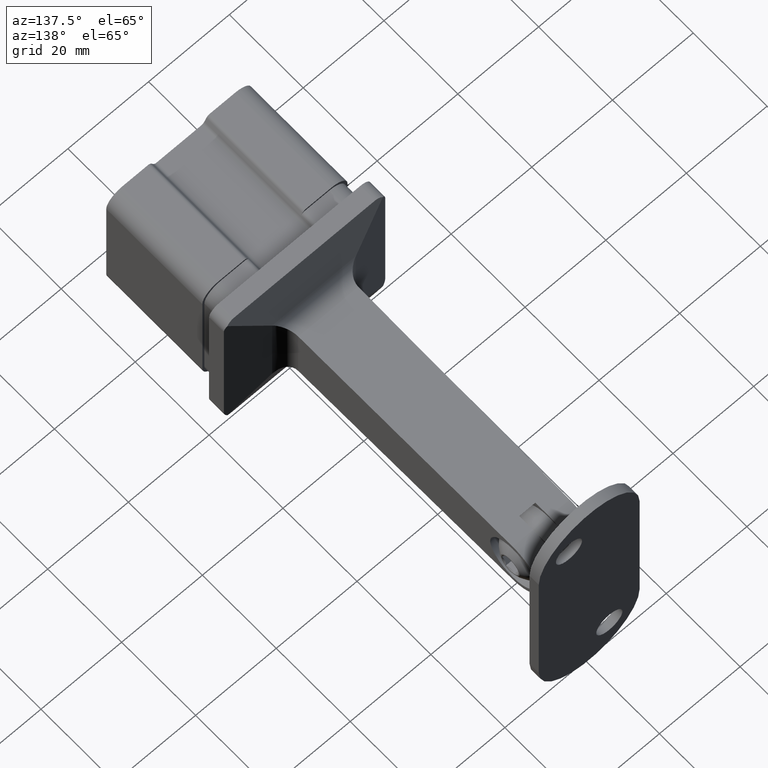
[diagram: clean part render]
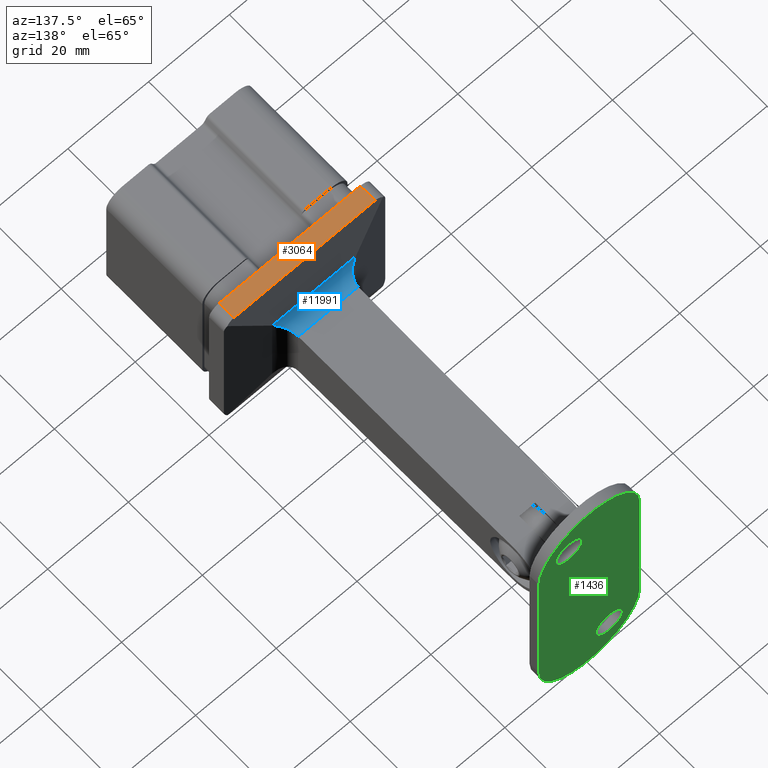
[diagram: same view with three faces highlighted in distinct colors, each labeled with its STEP entity id]
A machine part, auxiliary view with three faces highlighted in distinct colors.
Their STEP definitions:

[orange] entity #3064 — the highlighted planar face has unit normal (0, 0, -1).
#27 = PLANE ( 'NONE',  #9088 ) ;
#290 = EDGE_CURVE ( 'NONE', #8946, #13395, #12079, .T. ) ;
#694 = EDGE_CURVE ( 'NONE', #4160, #13395, #10576, .T. ) ;
#701 = VECTOR ( 'NONE', #10842, 1000.000000000000000 ) ;
#1072 = VECTOR ( 'NONE', #3628, 1000.000000000000000 ) ;
#1200 = EDGE_CURVE ( 'NONE', #4160, #14607, #8900, .T. ) ;
#1765 = CARTESIAN_POINT ( 'NONE',  ( -17.49999999999999645, 4.000000000000000000, 19.99999999999999645 ) ) ;
#2412 = VECTOR ( 'NONE', #3175, 1000.000000000000000 ) ;
#3018 = CARTESIAN_POINT ( 'NONE',  ( 17.50000000000000000, 4.000000000000000000, 19.99999999999999645 ) ) ;
#3064 = ADVANCED_FACE ( 'NONE', ( #14556 ), #27, .F. ) ;
#3175 = DIRECTION ( 'NONE',  ( -0.000000000000000000, 1.000000000000000000, -0.000000000000000000 ) ) ;
#3628 = DIRECTION ( 'NONE',  ( 1.000000000000000000, 0.000000000000000000, 0.000000000000000000 ) ) ;
#4160 = VERTEX_POINT ( 'NONE', #12937 ) ;
#5874 = CARTESIAN_POINT ( 'NONE',  ( -19.99999999999999645, 0.000000000000000000, 19.99999999999999645 ) ) ;
#6106 = CARTESIAN_POINT ( 'NONE',  ( -20.00000000000000355, 4.000000000000000000, 19.99999999999999645 ) ) ;
#6232 = ORIENTED_EDGE ( 'NONE', *, *, #290, .T. ) ;
#6411 = LINE ( 'NONE', #5874, #1072 ) ;
#6470 = ORIENTED_EDGE ( 'NONE', *, *, #694, .F. ) ;
#8327 = CARTESIAN_POINT ( 'NONE',  ( 17.50000000000000711, 0.000000000000000000, 19.99999999999999645 ) ) ;
#8425 = DIRECTION ( 'NONE',  ( -1.000000000000000000, 0.000000000000000000, -0.000000000000000000 ) ) ;
#8532 = CARTESIAN_POINT ( 'NONE',  ( -19.99999999999999645, 4.000000000000000000, 19.99999999999999645 ) ) ;
#8900 = LINE ( 'NONE', #1765, #10206 ) ;
#8946 = VERTEX_POINT ( 'NONE', #8327 ) ;
#9088 = AXIS2_PLACEMENT_3D ( 'NONE', #8532, #13466, #8425 ) ;
#9537 = CARTESIAN_POINT ( 'NONE',  ( 17.50000000000000711, 4.000000000000000000, 19.99999999999999645 ) ) ;
#10206 = VECTOR ( 'NONE', #11295, 1000.000000000000000 ) ;
#10576 = LINE ( 'NONE', #6106, #701 ) ;
#10842 = DIRECTION ( 'NONE',  ( 1.000000000000000000, -0.000000000000000000, -0.000000000000000000 ) ) ;
#10892 = ORIENTED_EDGE ( 'NONE', *, *, #1200, .T. ) ;
#11295 = DIRECTION ( 'NONE',  ( 0.000000000000000000, -1.000000000000000000, 0.000000000000000000 ) ) ;
#11798 = EDGE_LOOP ( 'NONE', ( #6470, #10892, #15709, #6232 ) ) ;
#11925 = EDGE_CURVE ( 'NONE', #14607, #8946, #6411, .T. ) ;
#12079 = LINE ( 'NONE', #9537, #2412 ) ;
#12937 = CARTESIAN_POINT ( 'NONE',  ( -17.49999999999999645, 4.000000000000000000, 19.99999999999999645 ) ) ;
#13395 = VERTEX_POINT ( 'NONE', #3018 ) ;
#13437 = CARTESIAN_POINT ( 'NONE',  ( -17.49999999999999645, 0.000000000000000000, 19.99999999999999645 ) ) ;
#13466 = DIRECTION ( 'NONE',  ( 0.000000000000000000, 0.000000000000000000, -1.000000000000000000 ) ) ;
#14556 = FACE_OUTER_BOUND ( 'NONE', #11798, .T. ) ;
#14607 = VERTEX_POINT ( 'NONE', #13437 ) ;
#15709 = ORIENTED_EDGE ( 'NONE', *, *, #11925, .T. ) ;

[blue] entity #11991 — the highlighted cylindrical surface (edge-blend (fillet) strip) has radius 4 mm, axis along (-1, 0, 0).
#332 = AXIS2_PLACEMENT_3D ( 'NONE', #15551, #1487, #1438 ) ;
#381 = DIRECTION ( 'NONE',  ( -1.000000000000000000, 0.000000000000000000, 0.000000000000000000 ) ) ;
#549 = VERTEX_POINT ( 'NONE', #15142 ) ;
#699 = CYLINDRICAL_SURFACE ( 'NONE', #332, 4.000000000000000000 ) ;
#1438 = DIRECTION ( 'NONE',  ( 0.000000000000000000, 0.000000000000000000, 1.000000000000000000 ) ) ;
#1487 = DIRECTION ( 'NONE',  ( -1.000000000000000000, 0.000000000000000000, 0.000000000000000000 ) ) ;
#2006 = EDGE_CURVE ( 'NONE', #8543, #6377, #10744, .T. ) ;
#2105 = DIRECTION ( 'NONE',  ( 1.000000000000000000, -0.000000000000000000, -0.000000000000000000 ) ) ;
#2850 =( BOUNDED_CURVE ( )  B_SPLINE_CURVE ( 3, ( #10672, #10579, #9426, #13125 ),
 .UNSPECIFIED., .F., .F. ) 
 B_SPLINE_CURVE_WITH_KNOTS ( ( 4, 4 ),
 ( 3.148224904747371156, 4.450589592585546761 ),
 .UNSPECIFIED. ) 
 CURVE ( )  GEOMETRIC_REPRESENTATION_ITEM ( )  RATIONAL_B_SPLINE_CURVE ( ( 1.000000000000000000, 0.8635784692076944324, 0.8635784692076944324, 1.000000000000000000 ) ) 
 REPRESENTATION_ITEM ( '' )  );
#2900 = VECTOR ( 'NONE', #381, 1000.000000000000000 ) ;
#3224 = CARTESIAN_POINT ( 'NONE',  ( 7.500000000000000888, 10.41066875624322030, 7.430952817700098301 ) ) ;
#4348 =( BOUNDED_CURVE ( )  B_SPLINE_CURVE ( 3, ( #10688, #4570, #11905, #5689 ),
 .UNSPECIFIED., .F., .F. ) 
 B_SPLINE_CURVE_WITH_KNOTS ( ( 4, 4 ),
 ( 0.006632251157578332793, 1.308996938995753423 ),
 .UNSPECIFIED. ) 
 CURVE ( )  GEOMETRIC_REPRESENTATION_ITEM ( )  RATIONAL_B_SPLINE_CURVE ( ( 1.000000000000000000, 0.8635784692076944324, 0.8635784692076944324, 1.000000000000000000 ) ) 
 REPRESENTATION_ITEM ( '' )  );
#4549 = ORIENTED_EDGE ( 'NONE', *, *, #6123, .F. ) ;
#4570 = CARTESIAN_POINT ( 'NONE',  ( 7.443366153380531536, 8.539033714458032165, 7.443366153380531536 ) ) ;
#5689 = CARTESIAN_POINT ( 'NONE',  ( 10.39558866410167681, 6.573494261230209190, 10.39558866410168037 ) ) ;
#6123 = EDGE_CURVE ( 'NONE', #6377, #549, #4348, .T. ) ;
#6219 = VECTOR ( 'NONE', #2105, 1000.000000000000000 ) ;
#6377 = VERTEX_POINT ( 'NONE', #14981 ) ;
#6734 = EDGE_CURVE ( 'NONE', #549, #12477, #10123, .T. ) ;
#8543 = VERTEX_POINT ( 'NONE', #9989 ) ;
#8887 = CARTESIAN_POINT ( 'NONE',  ( -20.00000000000000355, 6.573494261230208302, 10.39558866410167859 ) ) ;
#9418 = ORIENTED_EDGE ( 'NONE', *, *, #2006, .F. ) ;
#9426 = CARTESIAN_POINT ( 'NONE',  ( -8.587688278163442490, 7.057919709638261985, 8.587688278163446043 ) ) ;
#9695 = EDGE_LOOP ( 'NONE', ( #11950, #9743, #4549, #9418 ) ) ;
#9743 = ORIENTED_EDGE ( 'NONE', *, *, #6734, .F. ) ;
#9989 = CARTESIAN_POINT ( 'NONE',  ( -7.430952817700097413, 10.41066875624322030, 7.430952817700099189 ) ) ;
#10123 = LINE ( 'NONE', #8887, #2900 ) ;
#10579 = CARTESIAN_POINT ( 'NONE',  ( -7.443366153380527983, 8.539033714458035718, 7.443366153380530648 ) ) ;
#10672 = CARTESIAN_POINT ( 'NONE',  ( -7.430952817700097413, 10.41066875624322030, 7.430952817700099189 ) ) ;
#10688 = CARTESIAN_POINT ( 'NONE',  ( 7.430952817700098301, 10.41066875624322030, 7.430952817700098301 ) ) ;
#10744 = LINE ( 'NONE', #3224, #6219 ) ;
#11328 = CARTESIAN_POINT ( 'NONE',  ( -10.39558866410167681, 6.573494261230209190, 10.39558866410168037 ) ) ;
#11905 = CARTESIAN_POINT ( 'NONE',  ( 8.587688278163446043, 7.057919709638261985, 8.587688278163446043 ) ) ;
#11950 = ORIENTED_EDGE ( 'NONE', *, *, #13934, .T. ) ;
#11991 = ADVANCED_FACE ( 'NONE', ( #12455 ), #699, .F. ) ;
#12455 = FACE_OUTER_BOUND ( 'NONE', #9695, .T. ) ;
#12477 = VERTEX_POINT ( 'NONE', #11328 ) ;
#13125 = CARTESIAN_POINT ( 'NONE',  ( -10.39558866410167681, 6.573494261230209190, 10.39558866410168037 ) ) ;
#13934 = EDGE_CURVE ( 'NONE', #8543, #12477, #2850, .T. ) ;
#14981 = CARTESIAN_POINT ( 'NONE',  ( 7.430952817700098301, 10.41066875624322030, 7.430952817700098301 ) ) ;
#15142 = CARTESIAN_POINT ( 'NONE',  ( 10.39558866410167681, 6.573494261230209190, 10.39558866410168037 ) ) ;
#15551 = CARTESIAN_POINT ( 'NONE',  ( -20.00000000000000355, 10.43719756638648910, 11.43086484451173668 ) ) ;

[green] entity #1436 — the highlighted planar face has unit normal (0, 1, 0).
#454 = AXIS2_PLACEMENT_3D ( 'NONE', #12838, #11626, #4381 ) ;
#880 = EDGE_LOOP ( 'NONE', ( #11591, #10779, #8182, #10054 ) ) ;
#964 = VERTEX_POINT ( 'NONE', #8863 ) ;
#987 = VERTEX_POINT ( 'NONE', #7541 ) ;
#1008 = CARTESIAN_POINT ( 'NONE',  ( 1.530808498934189746E-15, 2.500000000000002220, -19.00000000000000000 ) ) ;
#1097 = CARTESIAN_POINT ( 'NONE',  ( 5.000000000000002665, 2.500000000000002220, 22.50000000000000000 ) ) ;
#1333 = EDGE_LOOP ( 'NONE', ( #2458 ) ) ;
#1436 = ADVANCED_FACE ( 'NONE', ( #14386, #11147, #14569 ), #15436, .T. ) ;
#2258 = DIRECTION ( 'NONE',  ( -1.369518533665900312E-16, -0.000000000000000000, -1.000000000000000000 ) ) ;
#2458 = ORIENTED_EDGE ( 'NONE', *, *, #5896, .F. ) ;
#2475 = VERTEX_POINT ( 'NONE', #6720 ) ;
#2495 = CARTESIAN_POINT ( 'NONE',  ( -12.49999999999999822, 2.500000000000002220, -19.00000000000000000 ) ) ;
#3742 = VERTEX_POINT ( 'NONE', #2495 ) ;
#3896 = CARTESIAN_POINT ( 'NONE',  ( -5.000000000000002665, 2.500000000000002220, -22.50000000000000000 ) ) ;
#3916 = EDGE_CURVE ( 'NONE', #4055, #4055, #11297, .T. ) ;
#4055 = VERTEX_POINT ( 'NONE', #9876 ) ;
#4103 = DIRECTION ( 'NONE',  ( 0.000000000000000000, 1.000000000000000000, 0.000000000000000000 ) ) ;
#4381 = DIRECTION ( 'NONE',  ( 0.000000000000000000, 0.000000000000000000, 1.000000000000000000 ) ) ;
#5404 = VECTOR ( 'NONE', #11151, 1000.000000000000000 ) ;
#5430 = EDGE_LOOP ( 'NONE', ( #13424 ) ) ;
#5896 = EDGE_CURVE ( 'NONE', #987, #987, #14321, .T. ) ;
#6720 = CARTESIAN_POINT ( 'NONE',  ( 12.50000000000000711, 2.500000000000002220, 19.00000000000000000 ) ) ;
#6976 = EDGE_CURVE ( 'NONE', #13992, #3742, #14853, .T. ) ;
#7109 = DIRECTION ( 'NONE',  ( 0.000000000000000000, -0.000000000000000000, 1.000000000000000000 ) ) ;
#7276 = DIRECTION ( 'NONE',  ( 0.000000000000000000, 1.000000000000000000, 0.000000000000000000 ) ) ;
#7293 = AXIS2_PLACEMENT_3D ( 'NONE', #3896, #14812, #8730 ) ;
#7541 = CARTESIAN_POINT ( 'NONE',  ( -5.000000000000002665, 2.500000000000002220, -19.25000000000000000 ) ) ;
#7620 = AXIS2_PLACEMENT_3D ( 'NONE', #1008, #13256, #7109 ) ;
#7624 = CIRCLE ( 'NONE', #454, 12.50000000000000000 ) ;
#7855 = EDGE_CURVE ( 'NONE', #964, #2475, #7624, .T. ) ;
#8182 = ORIENTED_EDGE ( 'NONE', *, *, #7855, .T. ) ;
#8252 = AXIS2_PLACEMENT_3D ( 'NONE', #11329, #4103, #12560 ) ;
#8730 = DIRECTION ( 'NONE',  ( 0.000000000000000000, 0.000000000000000000, 1.000000000000000000 ) ) ;
#8863 = CARTESIAN_POINT ( 'NONE',  ( -12.49999999999999289, 2.500000000000002220, 18.99999999999999645 ) ) ;
#9541 = CARTESIAN_POINT ( 'NONE',  ( 12.50000000000000178, 2.500000000000002220, -19.00000000000000000 ) ) ;
#9792 = CARTESIAN_POINT ( 'NONE',  ( -12.49999999999999289, 2.500000000000002220, 19.00000000000000000 ) ) ;
#9876 = CARTESIAN_POINT ( 'NONE',  ( 5.000000000000002665, 2.500000000000002220, 25.75000000000000000 ) ) ;
#10054 = ORIENTED_EDGE ( 'NONE', *, *, #13607, .T. ) ;
#10779 = ORIENTED_EDGE ( 'NONE', *, *, #11162, .T. ) ;
#11147 = FACE_BOUND ( 'NONE', #1333, .T. ) ;
#11151 = DIRECTION ( 'NONE',  ( 1.369518533665900312E-16, -0.000000000000000000, 1.000000000000000000 ) ) ;
#11162 = EDGE_CURVE ( 'NONE', #3742, #964, #11647, .T. ) ;
#11277 = VECTOR ( 'NONE', #2258, 1000.000000000000000 ) ;
#11297 = CIRCLE ( 'NONE', #13652, 3.249999999999999556 ) ;
#11329 = CARTESIAN_POINT ( 'NONE',  ( 1.530808498934189746E-15, 2.500000000000002220, -19.00000000000000000 ) ) ;
#11591 = ORIENTED_EDGE ( 'NONE', *, *, #6976, .T. ) ;
#11626 = DIRECTION ( 'NONE',  ( 0.000000000000000000, 1.000000000000000000, 0.000000000000000000 ) ) ;
#11647 = LINE ( 'NONE', #9792, #5404 ) ;
#11855 = LINE ( 'NONE', #9541, #11277 ) ;
#12059 = DIRECTION ( 'NONE',  ( 0.000000000000000000, 0.000000000000000000, 1.000000000000000000 ) ) ;
#12560 = DIRECTION ( 'NONE',  ( 0.000000000000000000, 0.000000000000000000, 1.000000000000000000 ) ) ;
#12838 = CARTESIAN_POINT ( 'NONE',  ( 6.184466335694133659E-15, 2.500000000000002220, 19.00000000000000000 ) ) ;
#13021 = CARTESIAN_POINT ( 'NONE',  ( 12.50000000000000178, 2.500000000000002220, -19.00000000000000000 ) ) ;
#13256 = DIRECTION ( 'NONE',  ( 0.000000000000000000, 1.000000000000000000, 0.000000000000000000 ) ) ;
#13424 = ORIENTED_EDGE ( 'NONE', *, *, #3916, .F. ) ;
#13607 = EDGE_CURVE ( 'NONE', #2475, #13992, #11855, .T. ) ;
#13652 = AXIS2_PLACEMENT_3D ( 'NONE', #1097, #7276, #12059 ) ;
#13992 = VERTEX_POINT ( 'NONE', #13021 ) ;
#14321 = CIRCLE ( 'NONE', #7293, 3.249999999999999556 ) ;
#14386 = FACE_BOUND ( 'NONE', #5430, .T. ) ;
#14569 = FACE_OUTER_BOUND ( 'NONE', #880, .T. ) ;
#14812 = DIRECTION ( 'NONE',  ( 0.000000000000000000, 1.000000000000000000, 0.000000000000000000 ) ) ;
#14853 = CIRCLE ( 'NONE', #8252, 12.50000000000000000 ) ;
#15436 = PLANE ( 'NONE',  #7620 ) ;